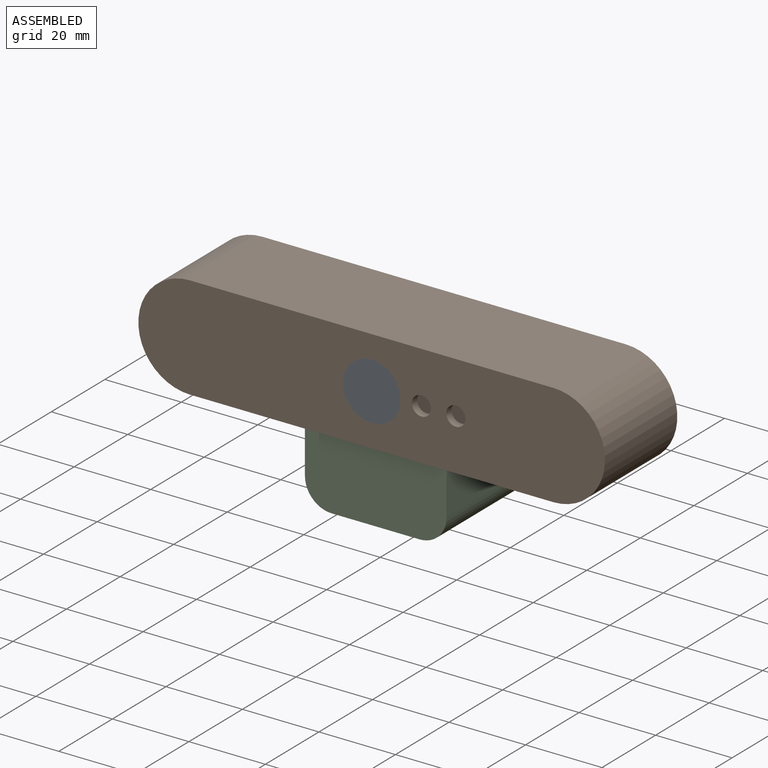
[diagram: assembled view]
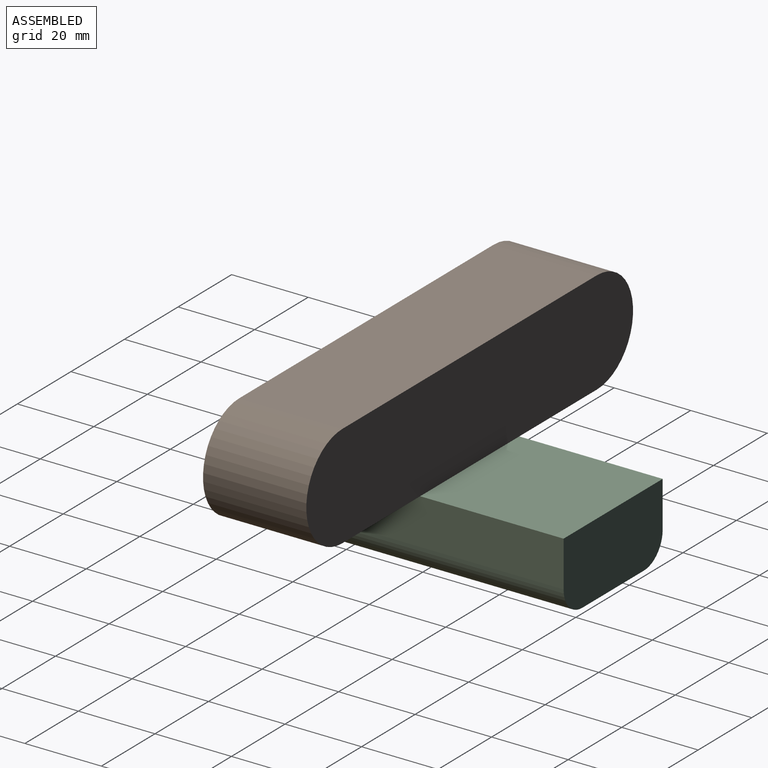
[diagram: assembled view, second angle]
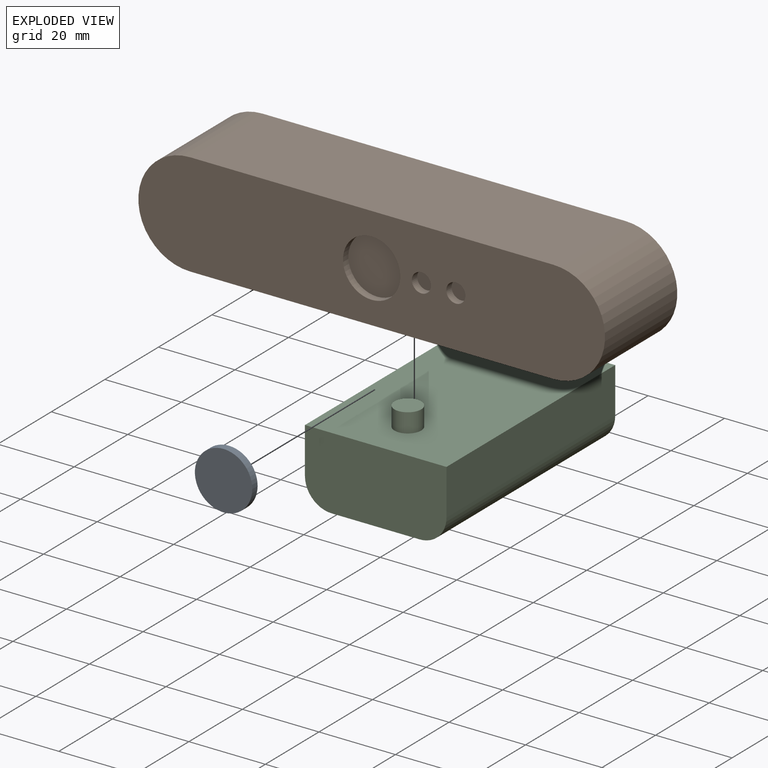
[diagram: exploded view]
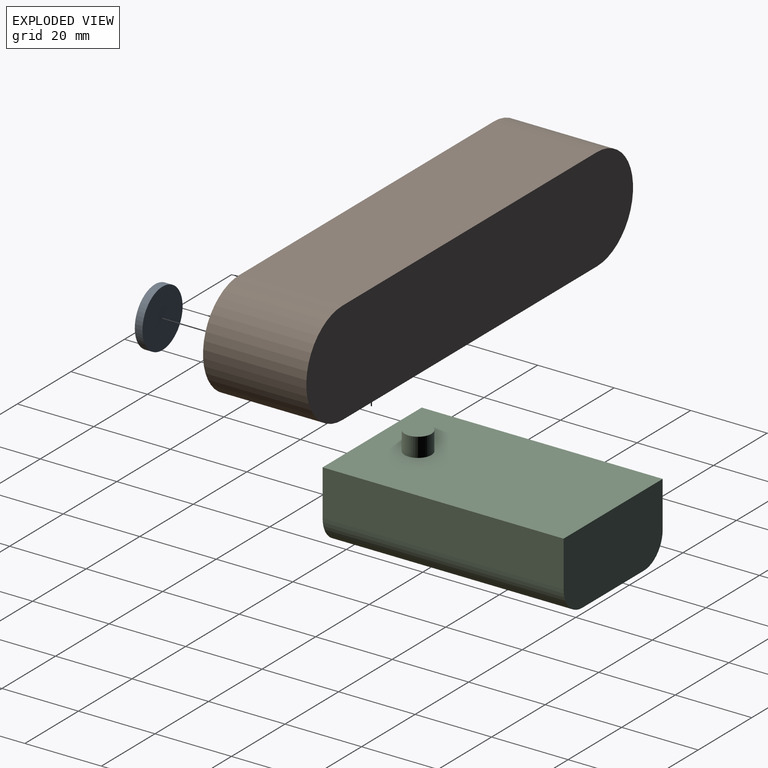
[diagram: exploded view, second angle]
ASSEMBLY  parts=3 mates=4
PART A: 3 faces, bbox 15x15x2 mm
  f0: cylinder r=7.5mm len=15mm, axis (0,0,-1), area 94.2mm2, adj f1,f2
  f1: plane 15x15mm, normal (0,0,1), area 176.7mm2, adj f0
  f2: plane 15x15mm, normal (0,0,-1), area 176.7mm2, adj f0
PART B: 14 faces, bbox 122x27x27 mm
  f0: plane 95x27mm, normal (0,0,1), area 2565mm2, adj f1,f3,f4,f5
  f1: cylinder r=13.5mm len=27mm, axis (0,1,0), area 1145.1mm2, adj f0,f2,f4,f5
  f2: plane 95x27mm, normal (0,0,-1), area 2526.5mm2, adj f1,f3,f4,f5,f12
  f3: cylinder r=13.5mm len=27mm, axis (0,1,0), area 1145.1mm2, adj f0,f2,f4,f5
  f4: plane 122x27mm, normal (0,-1,0), area 2921.6mm2, adj f0,f1,f2,f3,f6,f8,f10
  f5: plane 122x27mm, normal (0,1,0), area 3137.6mm2, adj f0,f1,f2,f3
  f6: cylinder r=2.5mm len=5mm, axis (0,-1,0), area 31.4mm2, adj f4,f7
  f7: plane 5x5mm, normal (0,-1,0), area 19.6mm2, adj f6
  f8: cylinder r=2.5mm len=5mm, axis (0,-1,0), area 31.4mm2, adj f4,f9
  f9: plane 5x5mm, normal (0,-1,0), area 19.6mm2, adj f8
  f10: cylinder r=7.5mm len=15mm, axis (0,-1,0), area 94.2mm2, adj f4,f11
  f11: plane 15x15mm, normal (0,-1,0), area 176.7mm2, adj f10
  f12: cylinder r=3.5mm len=7mm, axis (0,0,-1), area 110mm2, adj f2,f13
  f13: plane 7x7mm, normal (0,0,-1), area 38.5mm2, adj f12
PART C: 10 faces, bbox 37x63x24 mm
  f0: plane 63x12mm, normal (-1,0,0), area 756mm2, adj f3,f4,f5,f6
  f1: plane 63x23mm, normal (0,0,-1), area 1449mm2, adj f4,f5,f6,f7
  f2: plane 63x12mm, normal (1,0,0), area 756mm2, adj f3,f4,f5,f7
  f3: plane 63x37mm, normal (0,0,1), area 2292.5mm2, adj f0,f2,f4,f5,f8
  f4: plane 37x19mm, normal (0,-1,0), area 682mm2, adj f0,f1,f2,f3,f6,f7
  f5: plane 37x19mm, normal (0,1,0), area 682mm2, adj f0,f1,f2,f3,f6,f7
  f6: cylinder r=7mm len=63mm, axis (0,1,0), area 692.7mm2, adj f0,f1,f4,f5
  f7: cylinder r=7mm len=63mm, axis (0,1,0), area 692.7mm2, adj f1,f2,f4,f5
  f8: cylinder r=3.5mm len=7mm, axis (0,0,-1), area 110mm2, adj f3,f9
  f9: plane 7x7mm, normal (0,0,1), area 38.5mm2, adj f8
PLACE A rot(axis=(-1,0,0),90deg) t=(-34.57,-50.93,23.54)mm
PLACE B t=(-34.57,-23.93,23.54)mm
PLACE C t=(-16.07,13.57,-8.96)mm fixed
MATE planar B.f12 <-> C.f3  axis (0,0,-1) through (-34.57,-37.43,10.04)mm
MATE planar B.f12 <-> C.f8  axis (0,0,-1) through (-34.57,-37.43,12.54)mm
MATE planar B.f10 <-> A.f0  axis (0,-1,0) through (-34.57,-48.93,23.54)mm
MATE revolute A.f0 <-> B.f10  axis (0,-1,0) through (-34.57,-49.93,23.54)mm
